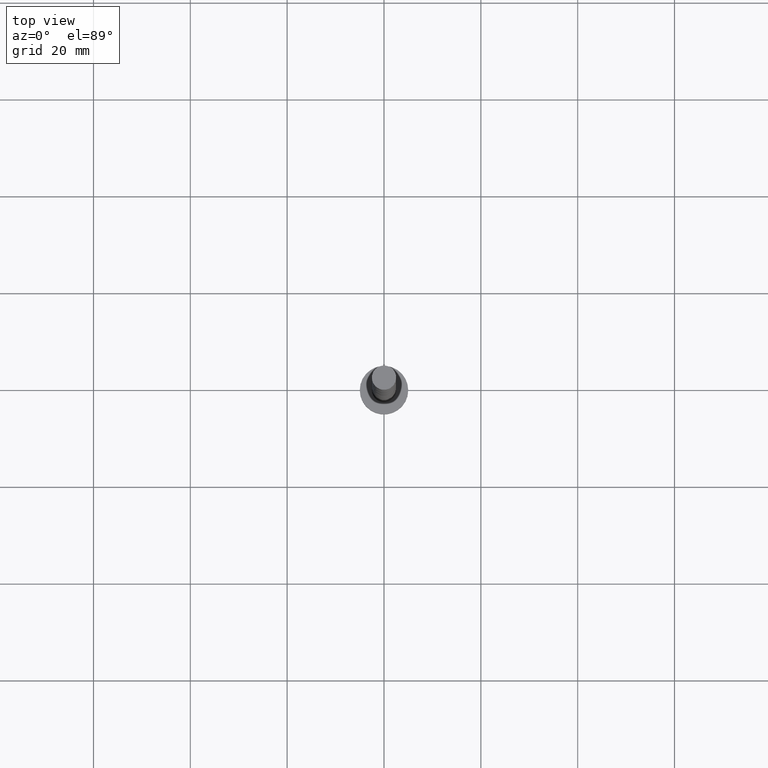
[diagram: clean part render]
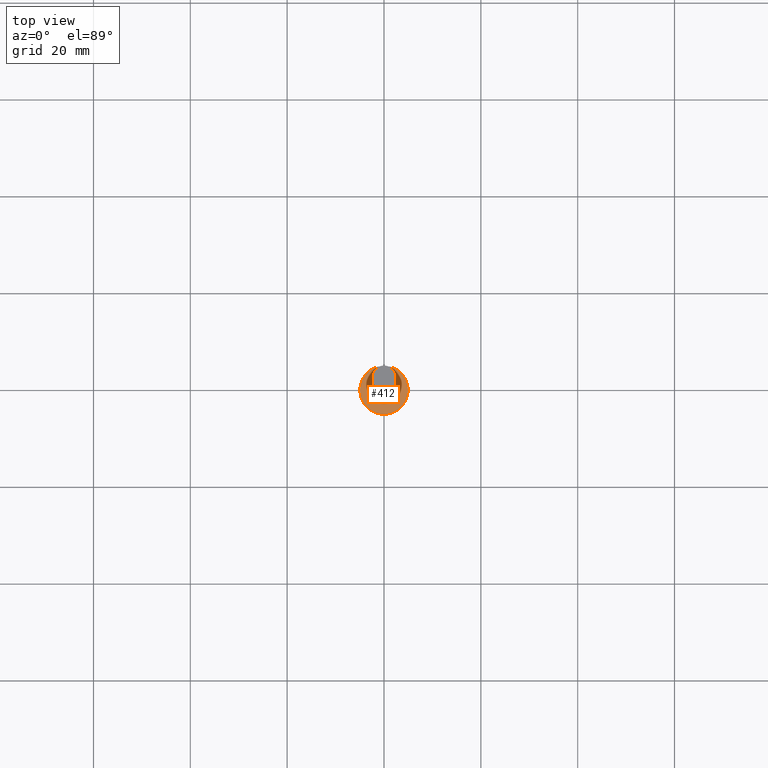
[diagram: same view with one face highlighted and labeled with its STEP entity id]
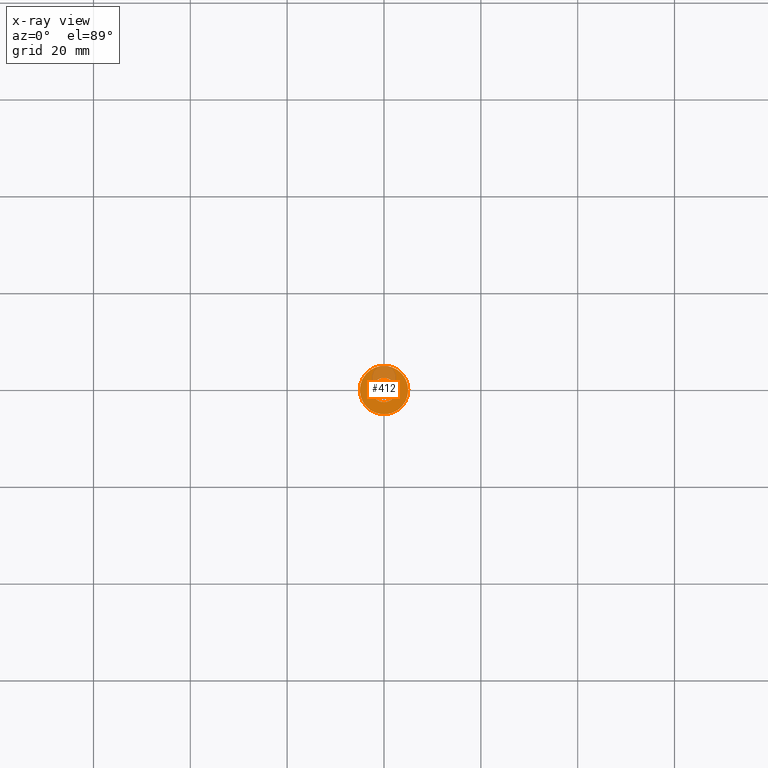
[diagram: x-ray of the same camera — body ghosted, the highlighted face saturated]
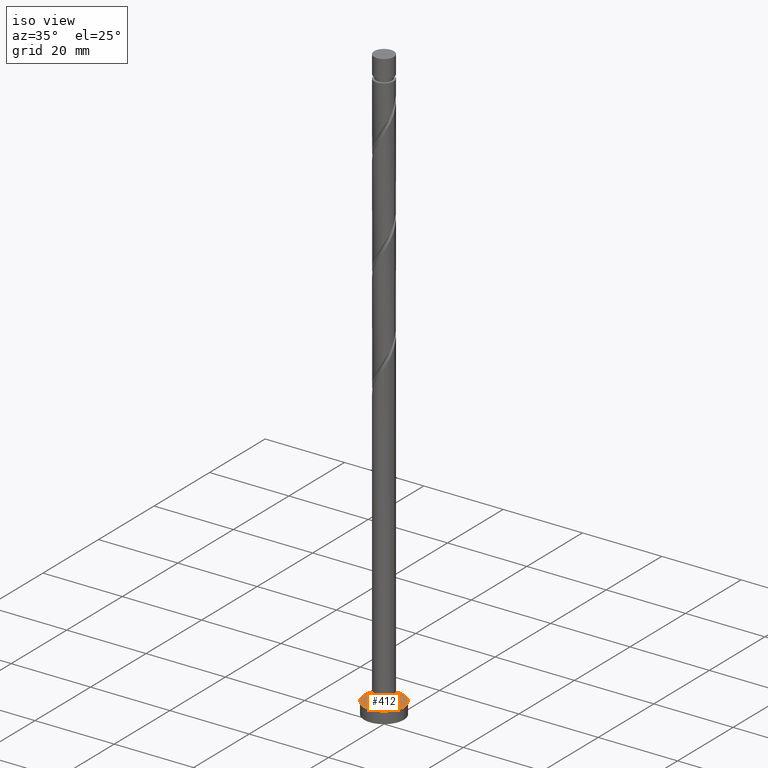
[diagram: same view with one face highlighted and labeled with its STEP entity id]
A machine part, top view. The second image highlights one B-rep face of the part: STEP entity #412.
The next image is the same camera in x-ray: the body ghosted, the highlighted face saturated — about 22% of this face is hidden behind the body in this view.
A second angle (iso view) of the same face is appended — the face is thin or edge-on in the first view.
In plain terms, the highlighted planar face has unit normal (0, 0, 1).
Its self-contained STEP definition (entity closure, byte-faithful):
#3 = CIRCLE ( 'NONE', #1639, 2.500000000000000000 ) ;
#29 = AXIS2_PLACEMENT_3D ( 'NONE', #1179, #1466, #431 ) ;
#93 = EDGE_CURVE ( 'NONE', #463, #1196, #551, .T. ) ;
#196 = CARTESIAN_POINT ( 'NONE',  ( 0.000000000000000000, 0.000000000000000000, 3.000000000000000000 ) ) ;
#242 = CARTESIAN_POINT ( 'NONE',  ( 2.500000000000000000, 3.061616997868383141E-16, 3.000000000000000000 ) ) ;
#255 = VERTEX_POINT ( 'NONE', #1051 ) ;
#331 = DIRECTION ( 'NONE',  ( 1.000000000000000000, 0.000000000000000000, 0.000000000000000000 ) ) ;
#361 = DIRECTION ( 'NONE',  ( 0.000000000000000000, 0.000000000000000000, 1.000000000000000000 ) ) ;
#412 = ADVANCED_FACE ( 'NONE', ( #1450, #814 ), #662, .T. ) ;
#422 = EDGE_LOOP ( 'NONE', ( #1152, #1339 ) ) ;
#431 = DIRECTION ( 'NONE',  ( 1.000000000000000000, 0.000000000000000000, -0.000000000000000000 ) ) ;
#463 = VERTEX_POINT ( 'NONE', #969 ) ;
#531 = AXIS2_PLACEMENT_3D ( 'NONE', #1153, #361, #620 ) ;
#551 = CIRCLE ( 'NONE', #1041, 5.000000000000000000 ) ;
#555 = CARTESIAN_POINT ( 'NONE',  ( 0.000000000000000000, 0.000000000000000000, 3.000000000000000000 ) ) ;
#620 = DIRECTION ( 'NONE',  ( 1.000000000000000000, 0.000000000000000000, 0.000000000000000000 ) ) ;
#646 = CIRCLE ( 'NONE', #941, 2.500000000000000000 ) ;
#662 = PLANE ( 'NONE',  #29 ) ;
#714 = DIRECTION ( 'NONE',  ( 0.000000000000000000, 0.000000000000000000, 1.000000000000000000 ) ) ;
#743 = DIRECTION ( 'NONE',  ( 1.000000000000000000, 0.000000000000000000, 0.000000000000000000 ) ) ;
#784 = CIRCLE ( 'NONE', #531, 5.000000000000000000 ) ;
#807 = ORIENTED_EDGE ( 'NONE', *, *, #93, .T. ) ;
#814 = FACE_OUTER_BOUND ( 'NONE', #1601, .T. ) ;
#872 = CARTESIAN_POINT ( 'NONE',  ( -5.000000000000000000, 0.000000000000000000, 3.000000000000000000 ) ) ;
#879 = CARTESIAN_POINT ( 'NONE',  ( 0.000000000000000000, 0.000000000000000000, 3.000000000000000000 ) ) ;
#939 = EDGE_CURVE ( 'NONE', #1240, #255, #646, .T. ) ;
#941 = AXIS2_PLACEMENT_3D ( 'NONE', #555, #1077, #331 ) ;
#969 = CARTESIAN_POINT ( 'NONE',  ( 5.000000000000000000, 6.123233995736766282E-16, 3.000000000000000000 ) ) ;
#1041 = AXIS2_PLACEMENT_3D ( 'NONE', #196, #714, #1231 ) ;
#1051 = CARTESIAN_POINT ( 'NONE',  ( -2.500000000000000000, 0.000000000000000000, 3.000000000000000000 ) ) ;
#1077 = DIRECTION ( 'NONE',  ( 0.000000000000000000, 0.000000000000000000, 1.000000000000000000 ) ) ;
#1152 = ORIENTED_EDGE ( 'NONE', *, *, #1271, .F. ) ;
#1153 = CARTESIAN_POINT ( 'NONE',  ( 0.000000000000000000, 0.000000000000000000, 3.000000000000000000 ) ) ;
#1172 = EDGE_CURVE ( 'NONE', #1196, #463, #784, .T. ) ;
#1179 = CARTESIAN_POINT ( 'NONE',  ( 0.000000000000000000, 0.000000000000000000, 3.000000000000000000 ) ) ;
#1196 = VERTEX_POINT ( 'NONE', #872 ) ;
#1221 = ORIENTED_EDGE ( 'NONE', *, *, #1172, .T. ) ;
#1231 = DIRECTION ( 'NONE',  ( 1.000000000000000000, 0.000000000000000000, 0.000000000000000000 ) ) ;
#1240 = VERTEX_POINT ( 'NONE', #242 ) ;
#1271 = EDGE_CURVE ( 'NONE', #255, #1240, #3, .T. ) ;
#1275 = DIRECTION ( 'NONE',  ( 0.000000000000000000, 0.000000000000000000, 1.000000000000000000 ) ) ;
#1339 = ORIENTED_EDGE ( 'NONE', *, *, #939, .F. ) ;
#1450 = FACE_BOUND ( 'NONE', #422, .T. ) ;
#1466 = DIRECTION ( 'NONE',  ( 0.000000000000000000, 0.000000000000000000, 1.000000000000000000 ) ) ;
#1601 = EDGE_LOOP ( 'NONE', ( #1221, #807 ) ) ;
#1639 = AXIS2_PLACEMENT_3D ( 'NONE', #879, #1275, #743 ) ;